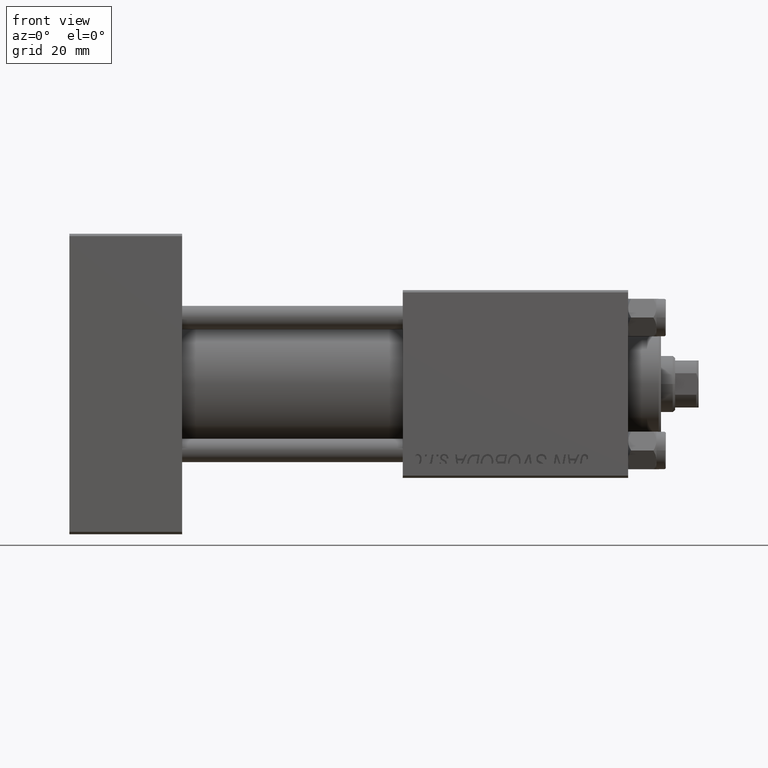
[diagram: clean part render]
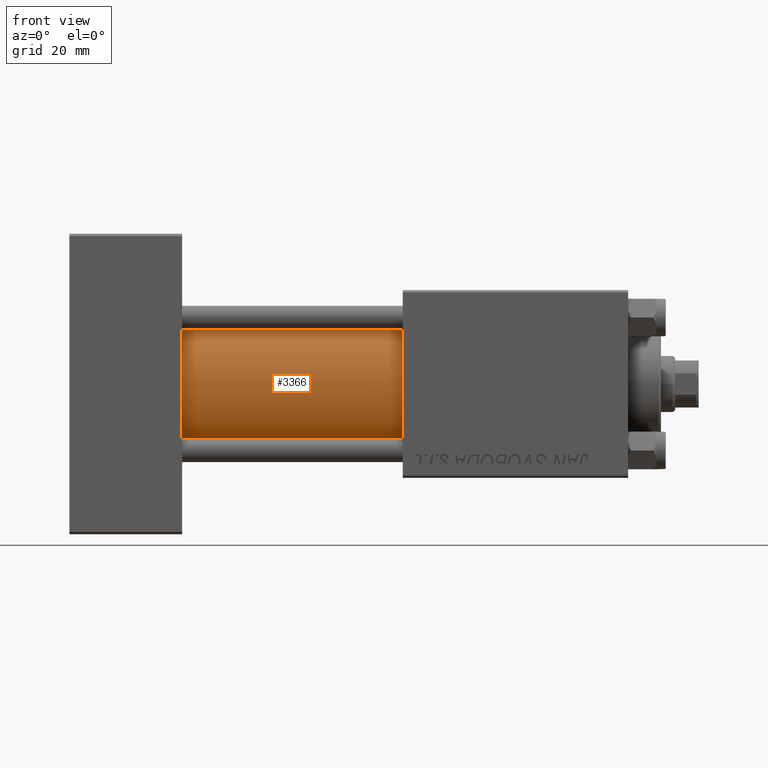
[diagram: same view with one face highlighted and labeled with its STEP entity id]
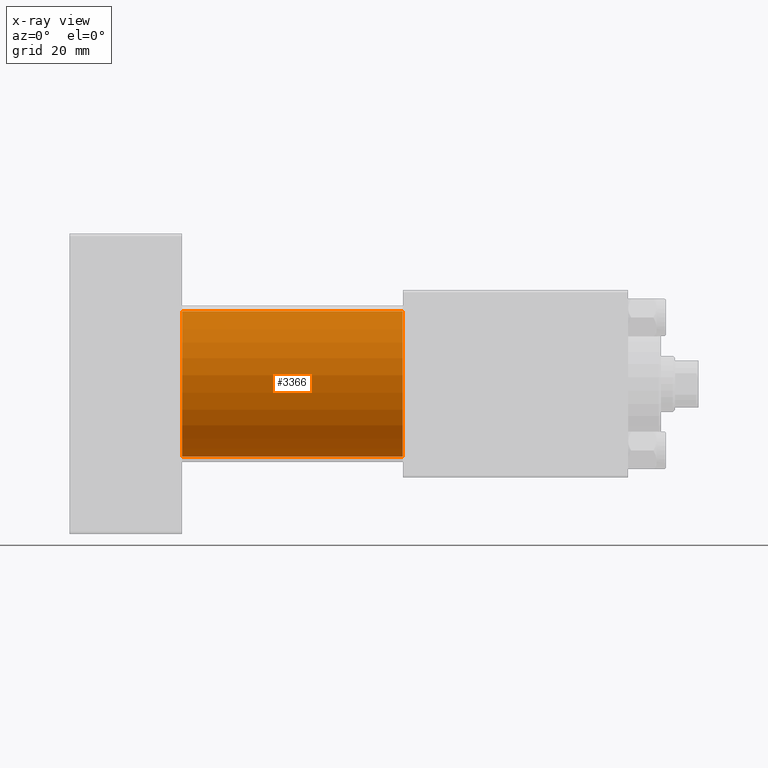
[diagram: x-ray of the same camera — body ghosted, the highlighted face saturated]
A machine part, front view. The second image highlights one B-rep face of the part: STEP entity #3366.
The next image is the same camera in x-ray: the body ghosted, the highlighted face saturated — about 0% of this face is hidden behind the body in this view.
In plain terms, the highlighted cylindrical surface (partial cylindrical patch) has radius 15.5 mm, axis along (-1, -0, -0).
Its self-contained STEP definition (entity closure, byte-faithful):
#3366 = ADVANCED_FACE ( 'NONE', ( #3595 ), #30724, .T. ) ;
#3384 = CARTESIAN_POINT ( 'NONE',  ( 71.00000000000001421, -2.602085213965210642E-15, 15.50000000000000000 ) ) ;
#3595 = FACE_OUTER_BOUND ( 'NONE', #25531, .T. ) ;
#5723 = AXIS2_PLACEMENT_3D ( 'NONE', #6664, #22553, #26199 ) ;
#6664 = CARTESIAN_POINT ( 'NONE',  ( 24.00000000000000000, -2.602085213965210642E-15, 0.000000000000000000 ) ) ;
#7128 = ORIENTED_EDGE ( 'NONE', *, *, #11349, .T. ) ;
#7474 = EDGE_CURVE ( 'NONE', #47134, #34579, #42023, .T. ) ;
#7743 = CARTESIAN_POINT ( 'NONE',  ( 71.00000000000001421, -2.602085213965210642E-15, 0.000000000000000000 ) ) ;
#10878 = DIRECTION ( 'NONE',  ( 1.000000000000000000, 0.000000000000000000, 0.000000000000000000 ) ) ;
#11349 = EDGE_CURVE ( 'NONE', #51664, #49751, #28523, .T. ) ;
#12605 = CARTESIAN_POINT ( 'NONE',  ( 24.00000000000000000, -7.038826752868131828E-16, -15.50000000000000000 ) ) ;
#13875 = VECTOR ( 'NONE', #16133, 1000.000000000000000 ) ;
#14877 = CIRCLE ( 'NONE', #5723, 15.50000000000000000 ) ;
#16133 = DIRECTION ( 'NONE',  ( -1.000000000000000000, -0.000000000000000000, -0.000000000000000000 ) ) ;
#16965 = EDGE_CURVE ( 'NONE', #49751, #34579, #14877, .T. ) ;
#19493 = DIRECTION ( 'NONE',  ( 0.000000000000000000, 0.000000000000000000, 1.000000000000000000 ) ) ;
#20984 = DIRECTION ( 'NONE',  ( 0.000000000000000000, 0.000000000000000000, -1.000000000000000000 ) ) ;
#22368 = CARTESIAN_POINT ( 'NONE',  ( 24.00000000000000000, -2.602085213965210642E-15, 15.50000000000000000 ) ) ;
#22553 = DIRECTION ( 'NONE',  ( 1.000000000000000000, 0.000000000000000000, 0.000000000000000000 ) ) ;
#23009 = ORIENTED_EDGE ( 'NONE', *, *, #16965, .T. ) ;
#23661 = CARTESIAN_POINT ( 'NONE',  ( 71.00000000000001421, -2.602085213965210642E-15, 0.000000000000000000 ) ) ;
#25531 = EDGE_LOOP ( 'NONE', ( #31946, #28994, #7128, #23009 ) ) ;
#25554 = CARTESIAN_POINT ( 'NONE',  ( 71.00000000000001421, -7.038826752868131828E-16, -15.50000000000000000 ) ) ;
#26199 = DIRECTION ( 'NONE',  ( 0.000000000000000000, 0.000000000000000000, 1.000000000000000000 ) ) ;
#28523 = LINE ( 'NONE', #3384, #13875 ) ;
#28994 = ORIENTED_EDGE ( 'NONE', *, *, #35163, .F. ) ;
#29689 = CIRCLE ( 'NONE', #42246, 15.50000000000000000 ) ;
#29728 = DIRECTION ( 'NONE',  ( -1.000000000000000000, -0.000000000000000000, -0.000000000000000000 ) ) ;
#30724 = CYLINDRICAL_SURFACE ( 'NONE', #47916, 15.50000000000000000 ) ;
#31321 = CARTESIAN_POINT ( 'NONE',  ( 71.00000000000001421, -2.602085213965210642E-15, 15.50000000000000000 ) ) ;
#31946 = ORIENTED_EDGE ( 'NONE', *, *, #7474, .F. ) ;
#34579 = VERTEX_POINT ( 'NONE', #12605 ) ;
#35163 = EDGE_CURVE ( 'NONE', #51664, #47134, #29689, .T. ) ;
#42023 = LINE ( 'NONE', #25554, #50449 ) ;
#42246 = AXIS2_PLACEMENT_3D ( 'NONE', #7743, #10878, #20984 ) ;
#44356 = CARTESIAN_POINT ( 'NONE',  ( 71.00000000000001421, -7.038826752868131828E-16, -15.50000000000000000 ) ) ;
#46679 = DIRECTION ( 'NONE',  ( -1.000000000000000000, -0.000000000000000000, -0.000000000000000000 ) ) ;
#47134 = VERTEX_POINT ( 'NONE', #44356 ) ;
#47916 = AXIS2_PLACEMENT_3D ( 'NONE', #23661, #46679, #19493 ) ;
#49751 = VERTEX_POINT ( 'NONE', #22368 ) ;
#50449 = VECTOR ( 'NONE', #29728, 1000.000000000000000 ) ;
#51664 = VERTEX_POINT ( 'NONE', #31321 ) ;